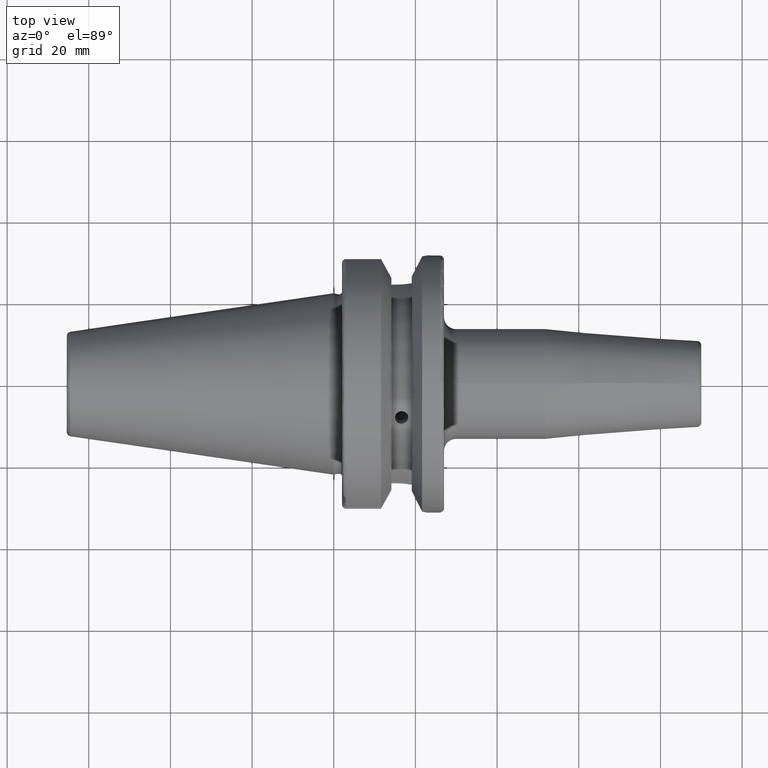
[diagram: clean part render]
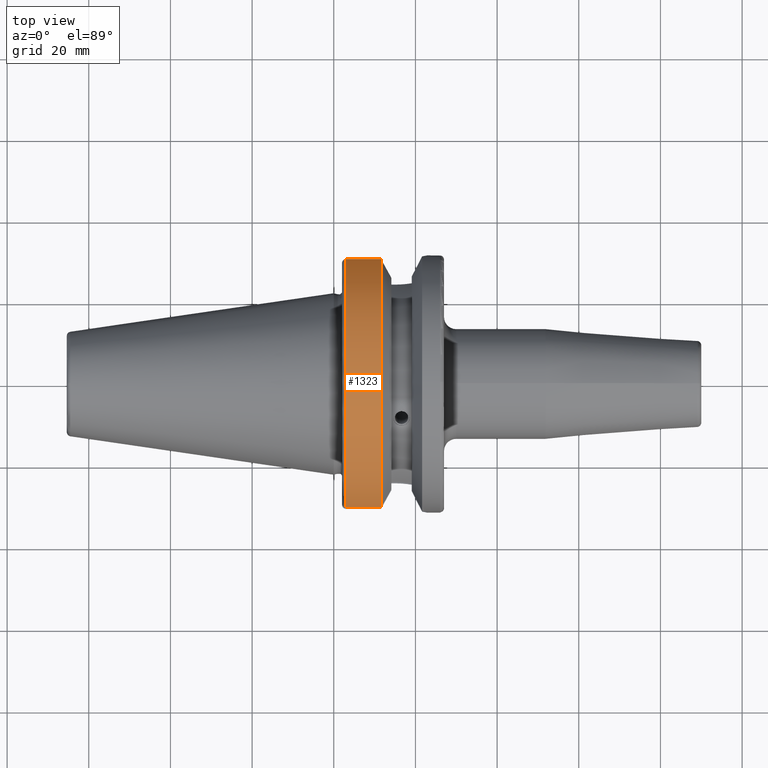
[diagram: same view with one face highlighted and labeled with its STEP entity id]
A machine part, top view. The second image highlights one B-rep face of the part: STEP entity #1323.
In plain terms, the highlighted cylindrical surface (partial cylindrical patch) has radius 31.5 mm, axis along (1, 0, 0).
Its self-contained STEP definition (entity closure, byte-faithful):
#122=CYLINDRICAL_SURFACE('',#1516,31.5);
#211=FACE_OUTER_BOUND('',#307,.T.);
#307=EDGE_LOOP('',(#1199,#1200,#1201,#1202));
#385=CIRCLE('',#1515,31.5);
#386=CIRCLE('',#1517,31.5000000000001);
#428=LINE('',#2351,#496);
#448=LINE('',#2505,#516);
#496=VECTOR('',#1774,10.);
#516=VECTOR('',#1842,10.);
#604=VERTEX_POINT('',#2346);
#605=VERTEX_POINT('',#2350);
#634=VERTEX_POINT('',#2493);
#635=VERTEX_POINT('',#2504);
#764=EDGE_CURVE('',#605,#604,#428,.T.);
#807=EDGE_CURVE('',#635,#634,#448,.T.);
#838=EDGE_CURVE('',#634,#605,#385,.T.);
#839=EDGE_CURVE('',#635,#604,#386,.T.);
#1199=ORIENTED_EDGE('',*,*,#764,.T.);
#1200=ORIENTED_EDGE('',*,*,#839,.F.);
#1201=ORIENTED_EDGE('',*,*,#807,.T.);
#1202=ORIENTED_EDGE('',*,*,#838,.T.);
#1323=ADVANCED_FACE('',(#211),#122,.T.);
#1515=AXIS2_PLACEMENT_3D('',#2570,#1923,#1924);
#1516=AXIS2_PLACEMENT_3D('',#2571,#1925,#1926);
#1517=AXIS2_PLACEMENT_3D('',#2572,#1927,#1928);
#1774=DIRECTION('',(1.,0.,0.));
#1842=DIRECTION('',(-1.,0.,0.));
#1923=DIRECTION('center_axis',(1.,0.,0.));
#1924=DIRECTION('ref_axis',(0.,0.,-1.));
#1925=DIRECTION('center_axis',(1.,0.,0.));
#1926=DIRECTION('ref_axis',(0.,1.,0.));
#1927=DIRECTION('center_axis',(1.,0.,0.));
#1928=DIRECTION('ref_axis',(0.,0.,-1.));
#2346=CARTESIAN_POINT('',(11.5690363073382,-30.4540227227866,8.05));
#2350=CARTESIAN_POINT('',(2.99999999999999,-30.4540227227866,8.05));
#2351=CARTESIAN_POINT('',(7.28451815366907,-30.4540227227866,8.05));
#2493=CARTESIAN_POINT('',(2.99999999999999,30.4540227227866,8.05));
#2504=CARTESIAN_POINT('',(11.5690363073382,30.4540227227866,8.05));
#2505=CARTESIAN_POINT('',(7.28451815366907,30.4540227227866,8.05));
#2570=CARTESIAN_POINT('Origin',(2.99999999999999,0.,0.));
#2571=CARTESIAN_POINT('Origin',(7.28451815366907,0.,0.));
#2572=CARTESIAN_POINT('Origin',(11.5690363073382,0.,0.));